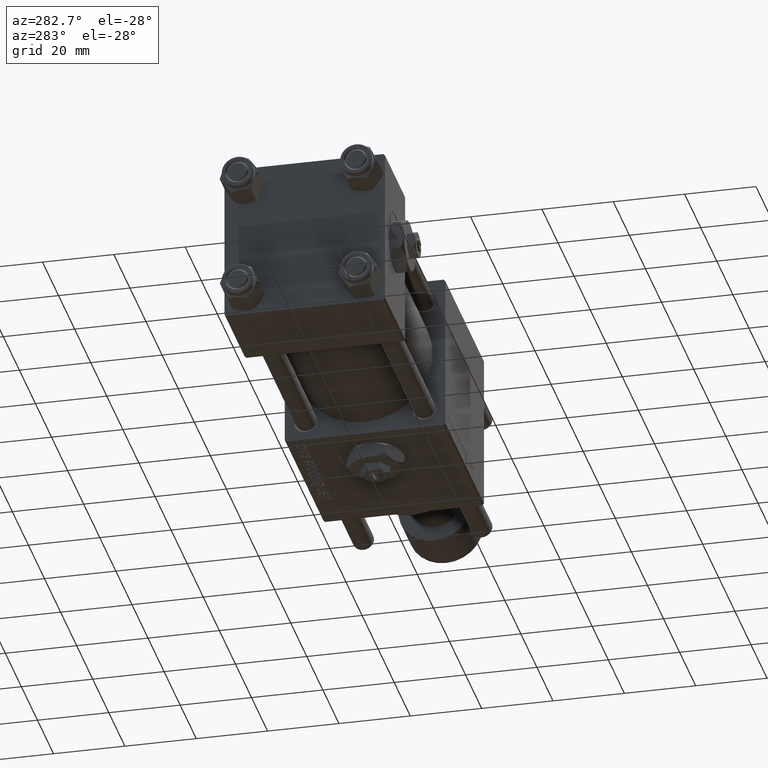
[diagram: clean part render]
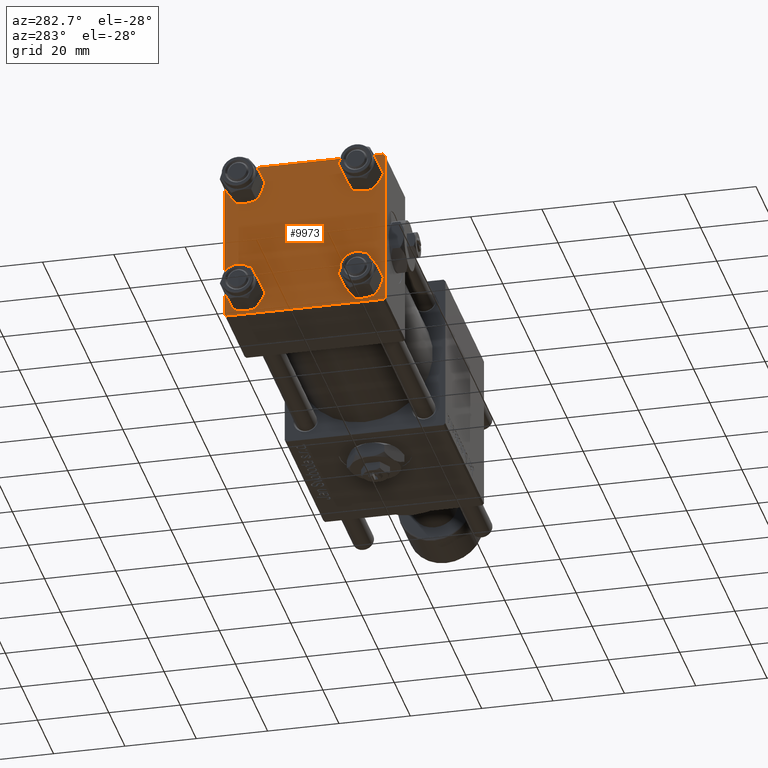
[diagram: same view with one face highlighted and labeled with its STEP entity id]
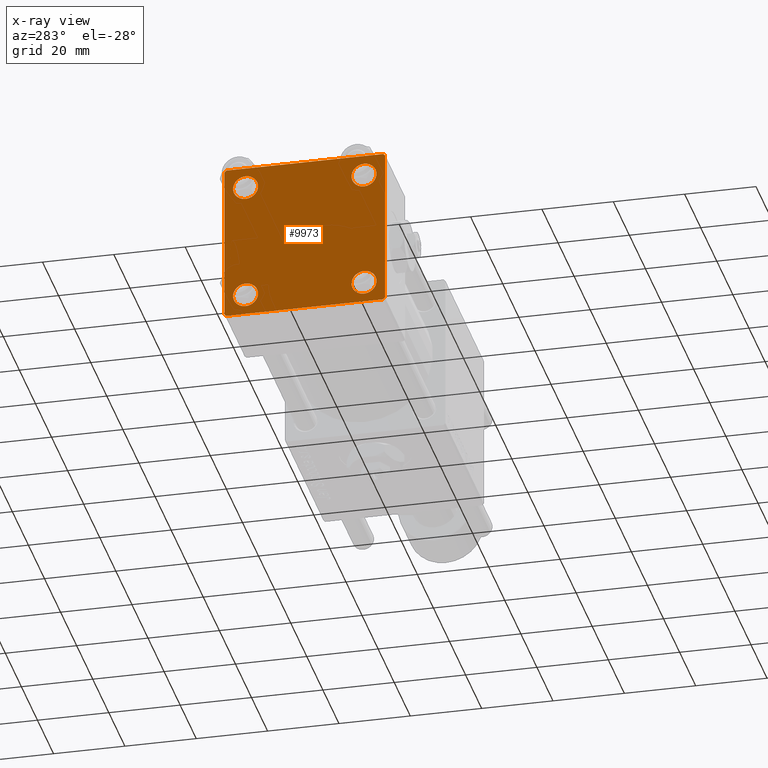
[diagram: x-ray of the same camera — body ghosted, the highlighted face saturated]
A machine part, auxiliary view. The second image highlights one B-rep face of the part: STEP entity #9973.
The next image is the same camera in x-ray: the body ghosted, the highlighted face saturated — about 0% of this face is hidden behind the body in this view.
In plain terms, the highlighted planar face has unit normal (-1, 0, 0).
Its self-contained STEP definition (entity closure, byte-faithful):
#233 = DIRECTION ( 'NONE',  ( 0.000000000000000000, 0.000000000000000000, 1.000000000000000000 ) ) ;
#618 = CARTESIAN_POINT ( 'NONE',  ( 0.000000000000000000, 16.59999999999999787, 16.60000000000000497 ) ) ;
#1745 = AXIS2_PLACEMENT_3D ( 'NONE', #55485, #37534, #51300 ) ;
#1756 = EDGE_CURVE ( 'NONE', #32710, #15481, #21339, .T. ) ;
#1825 = ORIENTED_EDGE ( 'NONE', *, *, #23779, .T. ) ;
#2416 = ORIENTED_EDGE ( 'NONE', *, *, #31484, .T. ) ;
#2448 = CARTESIAN_POINT ( 'NONE',  ( 0.000000000000000000, 22.25000000000014566, -22.24999999999984013 ) ) ;
#3789 = CIRCLE ( 'NONE', #46800, 3.499999999999996003 ) ;
#4305 = AXIS2_PLACEMENT_3D ( 'NONE', #48298, #25591, #47729 ) ;
#7461 = CARTESIAN_POINT ( 'NONE',  ( 0.000000000000000000, -21.99999999999997158, -22.50000000000000711 ) ) ;
#7954 = FACE_BOUND ( 'NONE', #29684, .T. ) ;
#8181 = VERTEX_POINT ( 'NONE', #18240 ) ;
#8254 = FACE_BOUND ( 'NONE', #49374, .T. ) ;
#8324 = EDGE_LOOP ( 'NONE', ( #34031, #1825 ) ) ;
#8751 = CARTESIAN_POINT ( 'NONE',  ( 0.000000000000000000, 22.50000000000000000, 22.50000000000000355 ) ) ;
#8828 = DIRECTION ( 'NONE',  ( -0.000000000000000000, 0.7071067811865525687, 0.7071067811865425767 ) ) ;
#9693 = VECTOR ( 'NONE', #21918, 1000.000000000000000 ) ;
#9716 = ORIENTED_EDGE ( 'NONE', *, *, #23928, .T. ) ;
#9756 = DIRECTION ( 'NONE',  ( 0.000000000000000000, 0.000000000000000000, 1.000000000000000000 ) ) ;
#9973 = ADVANCED_FACE ( 'NONE', ( #58773, #30698, #7954, #8254, #45612 ), #36059, .T. ) ;
#10797 = ORIENTED_EDGE ( 'NONE', *, *, #35068, .T. ) ;
#10835 = DIRECTION ( 'NONE',  ( 1.000000000000000000, -0.000000000000000000, 0.000000000000000000 ) ) ;
#10932 = DIRECTION ( 'NONE',  ( 0.000000000000000000, 0.000000000000000000, 1.000000000000000000 ) ) ;
#11274 = EDGE_LOOP ( 'NONE', ( #15480, #50012 ) ) ;
#12345 = CARTESIAN_POINT ( 'NONE',  ( 0.000000000000000000, 16.59999999999999787, -20.10000000000000142 ) ) ;
#12346 = CIRCLE ( 'NONE', #53371, 3.499999999999996003 ) ;
#12533 = CARTESIAN_POINT ( 'NONE',  ( 0.000000000000000000, -16.59999999999999076, 20.10000000000000853 ) ) ;
#12872 = VECTOR ( 'NONE', #30576, 1000.000000000000000 ) ;
#12905 = VECTOR ( 'NONE', #34235, 1000.000000000000000 ) ;
#13807 = LINE ( 'NONE', #35661, #37982 ) ;
#14793 = VERTEX_POINT ( 'NONE', #7461 ) ;
#14879 = VECTOR ( 'NONE', #39527, 1000.000000000000000 ) ;
#15480 = ORIENTED_EDGE ( 'NONE', *, *, #21269, .T. ) ;
#15481 = VERTEX_POINT ( 'NONE', #28847 ) ;
#15737 = CARTESIAN_POINT ( 'NONE',  ( 0.000000000000000000, 21.99999999999999289, -22.49999999999999645 ) ) ;
#15895 = ORIENTED_EDGE ( 'NONE', *, *, #1756, .F. ) ;
#16076 = AXIS2_PLACEMENT_3D ( 'NONE', #51337, #42345, #9756 ) ;
#16664 = LINE ( 'NONE', #44161, #34181 ) ;
#16913 = AXIS2_PLACEMENT_3D ( 'NONE', #45709, #59166, #233 ) ;
#18221 = EDGE_CURVE ( 'NONE', #8181, #56791, #38911, .T. ) ;
#18240 = CARTESIAN_POINT ( 'NONE',  ( 0.000000000000000000, 16.59999999999999787, -13.10000000000000675 ) ) ;
#19226 = CIRCLE ( 'NONE', #35430, 3.499999999999996003 ) ;
#20277 = EDGE_CURVE ( 'NONE', #40960, #54308, #16664, .T. ) ;
#21269 = EDGE_CURVE ( 'NONE', #52954, #52252, #48544, .T. ) ;
#21339 = LINE ( 'NONE', #39295, #12905 ) ;
#21918 = DIRECTION ( 'NONE',  ( 0.000000000000000000, 0.000000000000000000, -1.000000000000000000 ) ) ;
#22817 = EDGE_CURVE ( 'NONE', #32710, #46205, #54295, .T. ) ;
#23061 = CARTESIAN_POINT ( 'NONE',  ( 0.000000000000000000, -16.59999999999999076, -20.10000000000000497 ) ) ;
#23754 = ORIENTED_EDGE ( 'NONE', *, *, #18221, .T. ) ;
#23779 = EDGE_CURVE ( 'NONE', #54945, #26136, #53339, .T. ) ;
#23928 = EDGE_CURVE ( 'NONE', #26256, #39206, #12346, .T. ) ;
#25161 = CARTESIAN_POINT ( 'NONE',  ( 0.000000000000000000, 22.50000000000000000, -21.99999999999996803 ) ) ;
#25591 = DIRECTION ( 'NONE',  ( 1.000000000000000000, -0.000000000000000000, 0.000000000000000000 ) ) ;
#26136 = VERTEX_POINT ( 'NONE', #51061 ) ;
#26204 = CARTESIAN_POINT ( 'NONE',  ( 0.000000000000000000, 16.59999999999999787, 20.10000000000000142 ) ) ;
#26256 = VERTEX_POINT ( 'NONE', #26204 ) ;
#26475 = EDGE_CURVE ( 'NONE', #26136, #54945, #3789, .T. ) ;
#28847 = CARTESIAN_POINT ( 'NONE',  ( 0.000000000000000000, -22.50000000000000000, -21.99999999999997158 ) ) ;
#28879 = ORIENTED_EDGE ( 'NONE', *, *, #20277, .T. ) ;
#29095 = CARTESIAN_POINT ( 'NONE',  ( 0.000000000000000000, -21.99999999999997868, 22.50000000000000000 ) ) ;
#29684 = EDGE_LOOP ( 'NONE', ( #23754, #50309 ) ) ;
#30161 = AXIS2_PLACEMENT_3D ( 'NONE', #36354, #54306, #49815 ) ;
#30576 = DIRECTION ( 'NONE',  ( -0.000000000000000000, -0.7071067811865426878, -0.7071067811865524577 ) ) ;
#30698 = FACE_BOUND ( 'NONE', #8324, .T. ) ;
#31484 = EDGE_CURVE ( 'NONE', #54308, #57081, #44331, .T. ) ;
#32710 = VERTEX_POINT ( 'NONE', #37270 ) ;
#32841 = DIRECTION ( 'NONE',  ( 0.000000000000000000, -1.000000000000000000, -7.709882115452476934E-17 ) ) ;
#33142 = LINE ( 'NONE', #50770, #55051 ) ;
#34031 = ORIENTED_EDGE ( 'NONE', *, *, #26475, .T. ) ;
#34181 = VECTOR ( 'NONE', #53449, 1000.000000000000114 ) ;
#34235 = DIRECTION ( 'NONE',  ( 0.000000000000000000, 0.000000000000000000, -1.000000000000000000 ) ) ;
#35068 = EDGE_CURVE ( 'NONE', #39206, #26256, #19226, .T. ) ;
#35430 = AXIS2_PLACEMENT_3D ( 'NONE', #618, #36529, #45499 ) ;
#35661 = CARTESIAN_POINT ( 'NONE',  ( 0.000000000000000000, -22.25000000000014566, -22.24999999999984013 ) ) ;
#36059 = PLANE ( 'NONE',  #30161 ) ;
#36354 = CARTESIAN_POINT ( 'NONE',  ( 0.000000000000000000, 0.000000000000000000, 0.000000000000000000 ) ) ;
#36499 = CIRCLE ( 'NONE', #41275, 3.499999999999996003 ) ;
#36529 = DIRECTION ( 'NONE',  ( 1.000000000000000000, -0.000000000000000000, 0.000000000000000000 ) ) ;
#36564 = ORIENTED_EDGE ( 'NONE', *, *, #53820, .F. ) ;
#36821 = CIRCLE ( 'NONE', #4305, 3.499999999999996003 ) ;
#37270 = CARTESIAN_POINT ( 'NONE',  ( 0.000000000000000000, -22.50000000000000000, 22.00000000000000000 ) ) ;
#37534 = DIRECTION ( 'NONE',  ( 1.000000000000000000, -0.000000000000000000, 0.000000000000000000 ) ) ;
#37982 = VECTOR ( 'NONE', #50300, 1000.000000000000000 ) ;
#38019 = EDGE_CURVE ( 'NONE', #52252, #52954, #36499, .T. ) ;
#38911 = CIRCLE ( 'NONE', #16913, 3.499999999999996003 ) ;
#39206 = VERTEX_POINT ( 'NONE', #57717 ) ;
#39295 = CARTESIAN_POINT ( 'NONE',  ( 0.000000000000000000, -22.50000000000000000, 22.50000000000000000 ) ) ;
#39527 = DIRECTION ( 'NONE',  ( 0.000000000000000000, -1.000000000000000000, -2.312964634635742957E-16 ) ) ;
#39606 = CARTESIAN_POINT ( 'NONE',  ( 0.000000000000000000, -16.59999999999999076, 16.60000000000000853 ) ) ;
#40960 = VERTEX_POINT ( 'NONE', #47868 ) ;
#41275 = AXIS2_PLACEMENT_3D ( 'NONE', #39606, #57560, #10932 ) ;
#42345 = DIRECTION ( 'NONE',  ( 1.000000000000000000, -0.000000000000000000, 0.000000000000000000 ) ) ;
#42418 = ORIENTED_EDGE ( 'NONE', *, *, #48015, .T. ) ;
#42459 = VERTEX_POINT ( 'NONE', #15737 ) ;
#44161 = CARTESIAN_POINT ( 'NONE',  ( 0.000000000000000000, 22.24999999999999645, 22.24999999999999645 ) ) ;
#44331 = LINE ( 'NONE', #8751, #9693 ) ;
#44754 = EDGE_CURVE ( 'NONE', #57081, #42459, #53309, .T. ) ;
#44901 = LINE ( 'NONE', #53877, #14879 ) ;
#44961 = DIRECTION ( 'NONE',  ( 0.000000000000000000, 0.000000000000000000, 1.000000000000000000 ) ) ;
#45499 = DIRECTION ( 'NONE',  ( 0.000000000000000000, 0.000000000000000000, 1.000000000000000000 ) ) ;
#45612 = FACE_OUTER_BOUND ( 'NONE', #56148, .T. ) ;
#45709 = CARTESIAN_POINT ( 'NONE',  ( 0.000000000000000000, 16.59999999999999787, -16.60000000000000497 ) ) ;
#45767 = EDGE_CURVE ( 'NONE', #56791, #8181, #36821, .T. ) ;
#46205 = VERTEX_POINT ( 'NONE', #29095 ) ;
#46800 = AXIS2_PLACEMENT_3D ( 'NONE', #57172, #10835, #56303 ) ;
#46804 = ORIENTED_EDGE ( 'NONE', *, *, #56915, .T. ) ;
#47729 = DIRECTION ( 'NONE',  ( 0.000000000000000000, 0.000000000000000000, 1.000000000000000000 ) ) ;
#47868 = CARTESIAN_POINT ( 'NONE',  ( 0.000000000000000000, 21.99999999999999289, 22.50000000000000355 ) ) ;
#48015 = EDGE_CURVE ( 'NONE', #42459, #14793, #44901, .T. ) ;
#48298 = CARTESIAN_POINT ( 'NONE',  ( 0.000000000000000000, 16.59999999999999787, -16.60000000000000497 ) ) ;
#48544 = CIRCLE ( 'NONE', #16076, 3.499999999999996003 ) ;
#49374 = EDGE_LOOP ( 'NONE', ( #9716, #10797 ) ) ;
#49815 = DIRECTION ( 'NONE',  ( -0.000000000000000000, 0.000000000000000000, 1.000000000000000000 ) ) ;
#50012 = ORIENTED_EDGE ( 'NONE', *, *, #38019, .T. ) ;
#50037 = DIRECTION ( 'NONE',  ( 1.000000000000000000, -0.000000000000000000, 0.000000000000000000 ) ) ;
#50300 = DIRECTION ( 'NONE',  ( 0.000000000000000000, -0.7071067811865426878, 0.7071067811865524577 ) ) ;
#50309 = ORIENTED_EDGE ( 'NONE', *, *, #45767, .T. ) ;
#50488 = CARTESIAN_POINT ( 'NONE',  ( 0.000000000000000000, -16.59999999999999076, 13.10000000000001030 ) ) ;
#50770 = CARTESIAN_POINT ( 'NONE',  ( 0.000000000000000000, 22.50000000000000000, 22.50000000000000355 ) ) ;
#50857 = CARTESIAN_POINT ( 'NONE',  ( 0.000000000000000000, 22.50000000000000000, 21.99999999999999645 ) ) ;
#51061 = CARTESIAN_POINT ( 'NONE',  ( 0.000000000000000000, -16.59999999999999076, -13.10000000000001030 ) ) ;
#51300 = DIRECTION ( 'NONE',  ( 0.000000000000000000, 0.000000000000000000, 1.000000000000000000 ) ) ;
#51337 = CARTESIAN_POINT ( 'NONE',  ( 0.000000000000000000, -16.59999999999999076, 16.60000000000000853 ) ) ;
#52224 = ORIENTED_EDGE ( 'NONE', *, *, #22817, .T. ) ;
#52252 = VERTEX_POINT ( 'NONE', #50488 ) ;
#52416 = VECTOR ( 'NONE', #8828, 999.9999999999998863 ) ;
#52954 = VERTEX_POINT ( 'NONE', #12533 ) ;
#53309 = LINE ( 'NONE', #2448, #12872 ) ;
#53339 = CIRCLE ( 'NONE', #1745, 3.499999999999996003 ) ;
#53371 = AXIS2_PLACEMENT_3D ( 'NONE', #58418, #50037, #44961 ) ;
#53449 = DIRECTION ( 'NONE',  ( 0.000000000000000000, 0.7071067811865474617, -0.7071067811865474617 ) ) ;
#53820 = EDGE_CURVE ( 'NONE', #40960, #46205, #33142, .T. ) ;
#53877 = CARTESIAN_POINT ( 'NONE',  ( 0.000000000000000000, 22.50000000000000000, -22.49999999999999645 ) ) ;
#54295 = LINE ( 'NONE', #54867, #52416 ) ;
#54306 = DIRECTION ( 'NONE',  ( -1.000000000000000000, 0.000000000000000000, -0.000000000000000000 ) ) ;
#54308 = VERTEX_POINT ( 'NONE', #50857 ) ;
#54867 = CARTESIAN_POINT ( 'NONE',  ( -0.000000000000000000, -22.24999999999984013, 22.25000000000015277 ) ) ;
#54945 = VERTEX_POINT ( 'NONE', #23061 ) ;
#55051 = VECTOR ( 'NONE', #32841, 1000.000000000000000 ) ;
#55079 = ORIENTED_EDGE ( 'NONE', *, *, #44754, .T. ) ;
#55485 = CARTESIAN_POINT ( 'NONE',  ( 0.000000000000000000, -16.59999999999999076, -16.60000000000000853 ) ) ;
#56148 = EDGE_LOOP ( 'NONE', ( #2416, #55079, #42418, #46804, #15895, #52224, #36564, #28879 ) ) ;
#56303 = DIRECTION ( 'NONE',  ( 0.000000000000000000, 0.000000000000000000, 1.000000000000000000 ) ) ;
#56791 = VERTEX_POINT ( 'NONE', #12345 ) ;
#56915 = EDGE_CURVE ( 'NONE', #14793, #15481, #13807, .T. ) ;
#57081 = VERTEX_POINT ( 'NONE', #25161 ) ;
#57172 = CARTESIAN_POINT ( 'NONE',  ( 0.000000000000000000, -16.59999999999999076, -16.60000000000000853 ) ) ;
#57560 = DIRECTION ( 'NONE',  ( 1.000000000000000000, -0.000000000000000000, 0.000000000000000000 ) ) ;
#57717 = CARTESIAN_POINT ( 'NONE',  ( 0.000000000000000000, 16.59999999999999787, 13.10000000000000675 ) ) ;
#58418 = CARTESIAN_POINT ( 'NONE',  ( 0.000000000000000000, 16.59999999999999787, 16.60000000000000497 ) ) ;
#58773 = FACE_BOUND ( 'NONE', #11274, .T. ) ;
#59166 = DIRECTION ( 'NONE',  ( 1.000000000000000000, -0.000000000000000000, 0.000000000000000000 ) ) ;